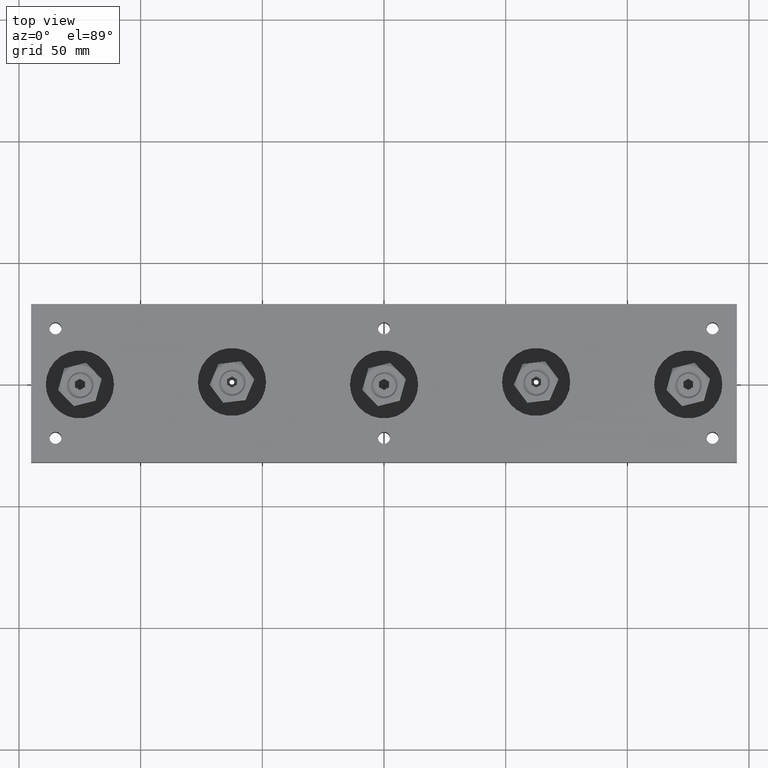
[diagram: clean part render]
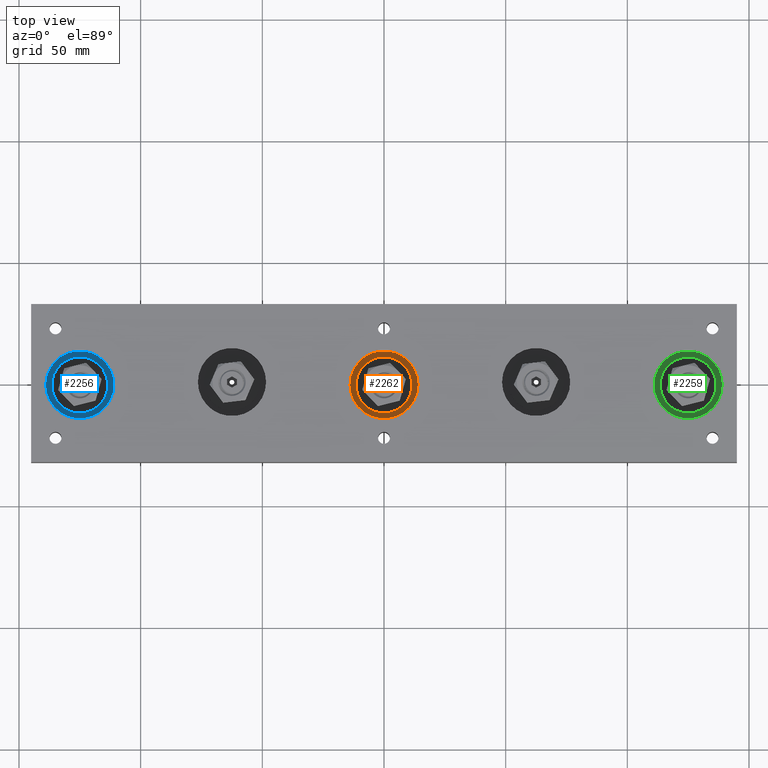
[diagram: same view with three faces highlighted in distinct colors, each labeled with its STEP entity id]
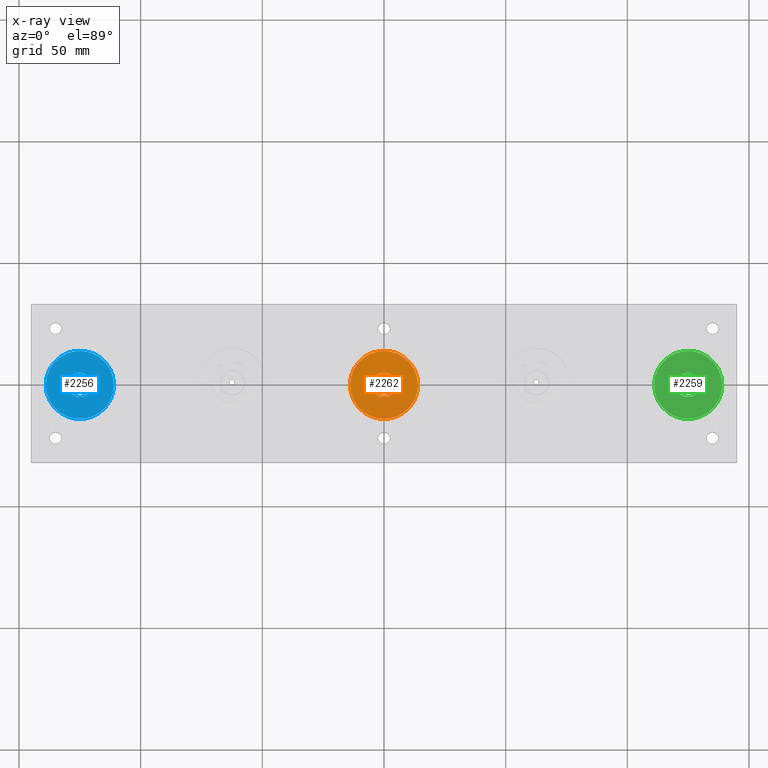
[diagram: x-ray of the same camera — body ghosted, the three highlighted faces saturated]
A machine part, top view with three faces highlighted in distinct colors.
The next image is the same camera in x-ray (body ghosted, the three faces saturated) — at least one of them is partly hidden behind the body in this view.
Their STEP definitions:

[orange] entity #2262 — the highlighted planar face has unit normal (0, 0, 1).
#185=FACE_BOUND('',#458,.T.);
#236=PLANE('',#2634);
#309=FACE_OUTER_BOUND('',#457,.T.);
#457=EDGE_LOOP('',(#1620));
#458=EDGE_LOOP('',(#1621));
#944=CIRCLE('',#2635,14.);
#945=CIRCLE('',#2636,5.);
#1087=VERTEX_POINT('',#3752);
#1088=VERTEX_POINT('',#3754);
#1297=EDGE_CURVE('',#1087,#1087,#944,.T.);
#1298=EDGE_CURVE('',#1088,#1088,#945,.T.);
#1620=ORIENTED_EDGE('',*,*,#1297,.T.);
#1621=ORIENTED_EDGE('',*,*,#1298,.F.);
#2262=ADVANCED_FACE('',(#309,#185),#236,.T.);
#2634=AXIS2_PLACEMENT_3D('',#3751,#2993,#2994);
#2635=AXIS2_PLACEMENT_3D('',#3753,#2995,#2996);
#2636=AXIS2_PLACEMENT_3D('',#3755,#2997,#2998);
#2993=DIRECTION('center_axis',(0.,0.,1.));
#2994=DIRECTION('ref_axis',(1.,0.,0.));
#2995=DIRECTION('center_axis',(0.,0.,1.));
#2996=DIRECTION('ref_axis',(1.,0.,0.));
#2997=DIRECTION('center_axis',(0.,0.,1.));
#2998=DIRECTION('ref_axis',(1.,0.,0.));
#3751=CARTESIAN_POINT('Origin',(0.,-0.600000000000005,13.));
#3752=CARTESIAN_POINT('',(-14.,-0.600000000000007,13.));
#3753=CARTESIAN_POINT('Origin',(0.,-0.600000000000005,13.));
#3754=CARTESIAN_POINT('',(-5.,-0.600000000000006,13.));
#3755=CARTESIAN_POINT('Origin',(0.,-0.600000000000005,13.));

[blue] entity #2256 — the highlighted planar face has unit normal (0, 0, 1).
#183=FACE_BOUND('',#450,.T.);
#234=PLANE('',#2620);
#303=FACE_OUTER_BOUND('',#449,.T.);
#449=EDGE_LOOP('',(#1600));
#450=EDGE_LOOP('',(#1601));
#936=CIRCLE('',#2621,14.);
#937=CIRCLE('',#2622,5.);
#1079=VERTEX_POINT('',#3726);
#1080=VERTEX_POINT('',#3728);
#1285=EDGE_CURVE('',#1079,#1079,#936,.T.);
#1286=EDGE_CURVE('',#1080,#1080,#937,.T.);
#1600=ORIENTED_EDGE('',*,*,#1285,.T.);
#1601=ORIENTED_EDGE('',*,*,#1286,.F.);
#2256=ADVANCED_FACE('',(#303,#183),#234,.T.);
#2620=AXIS2_PLACEMENT_3D('',#3725,#2961,#2962);
#2621=AXIS2_PLACEMENT_3D('',#3727,#2963,#2964);
#2622=AXIS2_PLACEMENT_3D('',#3729,#2965,#2966);
#2961=DIRECTION('center_axis',(0.,0.,1.));
#2962=DIRECTION('ref_axis',(1.,0.,0.));
#2963=DIRECTION('center_axis',(0.,0.,1.));
#2964=DIRECTION('ref_axis',(1.,0.,0.));
#2965=DIRECTION('center_axis',(0.,0.,1.));
#2966=DIRECTION('ref_axis',(1.,0.,0.));
#3725=CARTESIAN_POINT('Origin',(-125.,-0.600000000000005,13.));
#3726=CARTESIAN_POINT('',(-139.,-0.600000000000007,13.));
#3727=CARTESIAN_POINT('Origin',(-125.,-0.600000000000005,13.));
#3728=CARTESIAN_POINT('',(-130.,-0.600000000000006,13.));
#3729=CARTESIAN_POINT('Origin',(-125.,-0.600000000000005,13.));

[green] entity #2259 — the highlighted planar face has unit normal (0, 0, 1).
#184=FACE_BOUND('',#454,.T.);
#235=PLANE('',#2627);
#306=FACE_OUTER_BOUND('',#453,.T.);
#453=EDGE_LOOP('',(#1610));
#454=EDGE_LOOP('',(#1611));
#940=CIRCLE('',#2628,14.);
#941=CIRCLE('',#2629,5.);
#1083=VERTEX_POINT('',#3739);
#1084=VERTEX_POINT('',#3741);
#1291=EDGE_CURVE('',#1083,#1083,#940,.T.);
#1292=EDGE_CURVE('',#1084,#1084,#941,.T.);
#1610=ORIENTED_EDGE('',*,*,#1291,.T.);
#1611=ORIENTED_EDGE('',*,*,#1292,.F.);
#2259=ADVANCED_FACE('',(#306,#184),#235,.T.);
#2627=AXIS2_PLACEMENT_3D('',#3738,#2977,#2978);
#2628=AXIS2_PLACEMENT_3D('',#3740,#2979,#2980);
#2629=AXIS2_PLACEMENT_3D('',#3742,#2981,#2982);
#2977=DIRECTION('center_axis',(0.,0.,1.));
#2978=DIRECTION('ref_axis',(1.,0.,0.));
#2979=DIRECTION('center_axis',(0.,0.,1.));
#2980=DIRECTION('ref_axis',(1.,0.,0.));
#2981=DIRECTION('center_axis',(0.,0.,1.));
#2982=DIRECTION('ref_axis',(1.,0.,0.));
#3738=CARTESIAN_POINT('Origin',(125.,-0.600000000000005,13.));
#3739=CARTESIAN_POINT('',(111.,-0.600000000000007,13.));
#3740=CARTESIAN_POINT('Origin',(125.,-0.600000000000005,13.));
#3741=CARTESIAN_POINT('',(120.,-0.600000000000006,13.));
#3742=CARTESIAN_POINT('Origin',(125.,-0.600000000000005,13.));